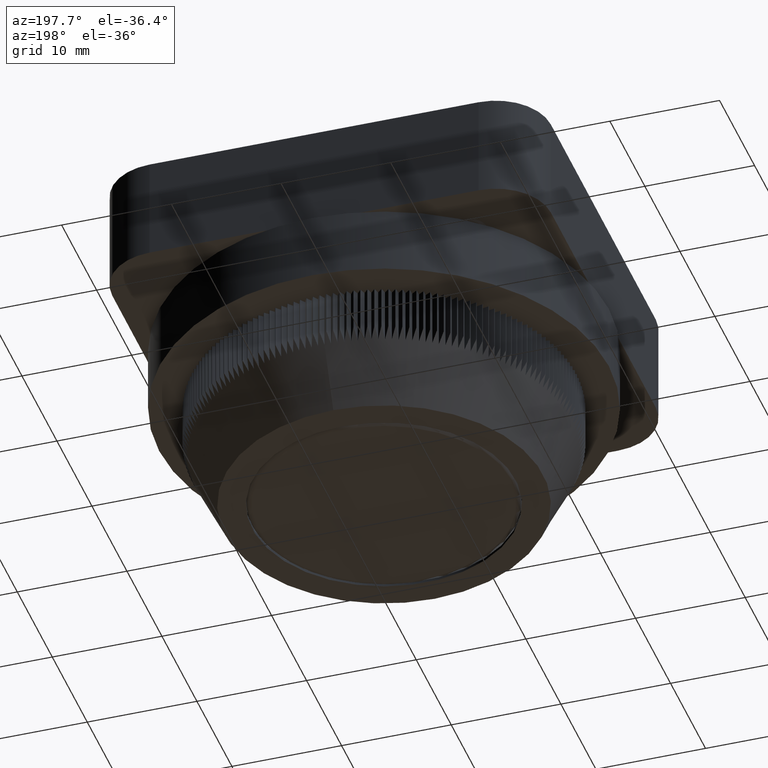
[diagram: clean part render]
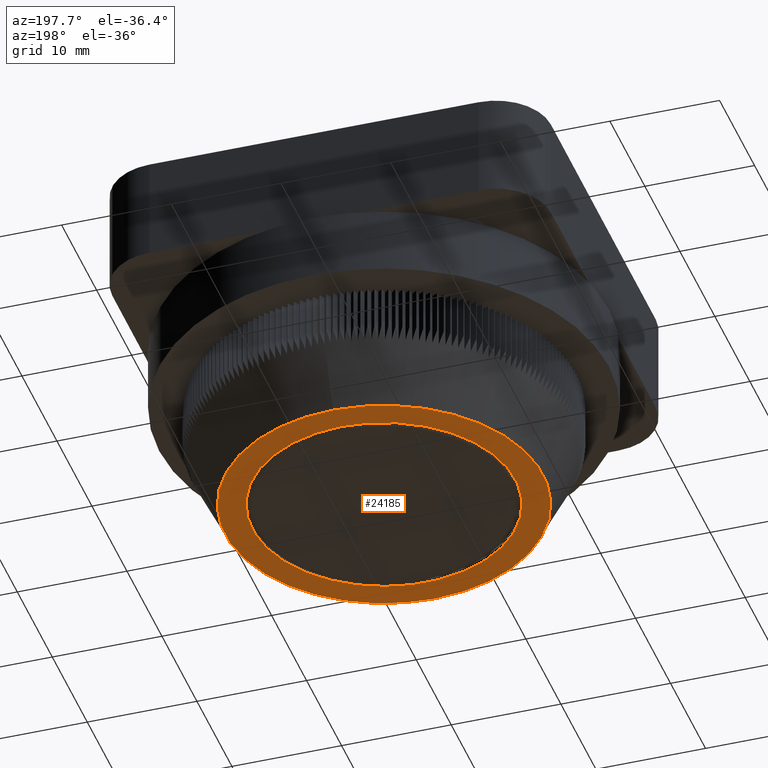
[diagram: same view with one face highlighted and labeled with its STEP entity id]
A machine part, auxiliary view. The second image highlights one B-rep face of the part: STEP entity #24185.
In plain terms, the highlighted planar face has unit normal (0, 0, -1).
Its self-contained STEP definition (entity closure, byte-faithful):
#24042=CARTESIAN_POINT('',(-15.873959335397741,25.972162304310771,0.0));
#24043=VERTEX_POINT('',#24042);
#24044=CARTESIAN_POINT('',(-15.873959335397741,11.472162304310780,0.0));
#24045=DIRECTION('',(1.0,0.0,0.0));
#24046=DIRECTION('',(0.0,1.0,0.0));
#24047=AXIS2_PLACEMENT_3D('',#24044,#24045,#24046);
#24048=CIRCLE('',#24047,14.499999999999993);
#24049=EDGE_CURVE('',#24043,#24043,#24048,.T.);
#24159=CARTESIAN_POINT('',(-15.873959335397741,23.472162304310771,0.0));
#24160=VERTEX_POINT('',#24159);
#24161=CARTESIAN_POINT('',(-15.873959335397741,11.472162304310780,0.0));
#24162=DIRECTION('',(1.0,0.0,0.0));
#24163=DIRECTION('',(0.0,1.0,0.0));
#24164=AXIS2_PLACEMENT_3D('',#24161,#24162,#24163);
#24165=CIRCLE('',#24164,11.999999999999993);
#24166=EDGE_CURVE('',#24160,#24160,#24165,.T.);
#24174=CARTESIAN_POINT('',(-15.873959335397741,24.722162304310771,0.0));
#24175=DIRECTION('',(-1.0,0.0,0.0));
#24176=DIRECTION('',(0.0,0.0,1.0));
#24177=AXIS2_PLACEMENT_3D('',#24174,#24175,#24176);
#24178=PLANE('',#24177);
#24179=ORIENTED_EDGE('',*,*,#24049,.F.);
#24180=EDGE_LOOP('',(#24179));
#24181=FACE_OUTER_BOUND('',#24180,.T.);
#24182=ORIENTED_EDGE('',*,*,#24166,.T.);
#24183=EDGE_LOOP('',(#24182));
#24184=FACE_BOUND('',#24183,.T.);
#24185=ADVANCED_FACE('',(#24181,#24184),#24178,.T.);